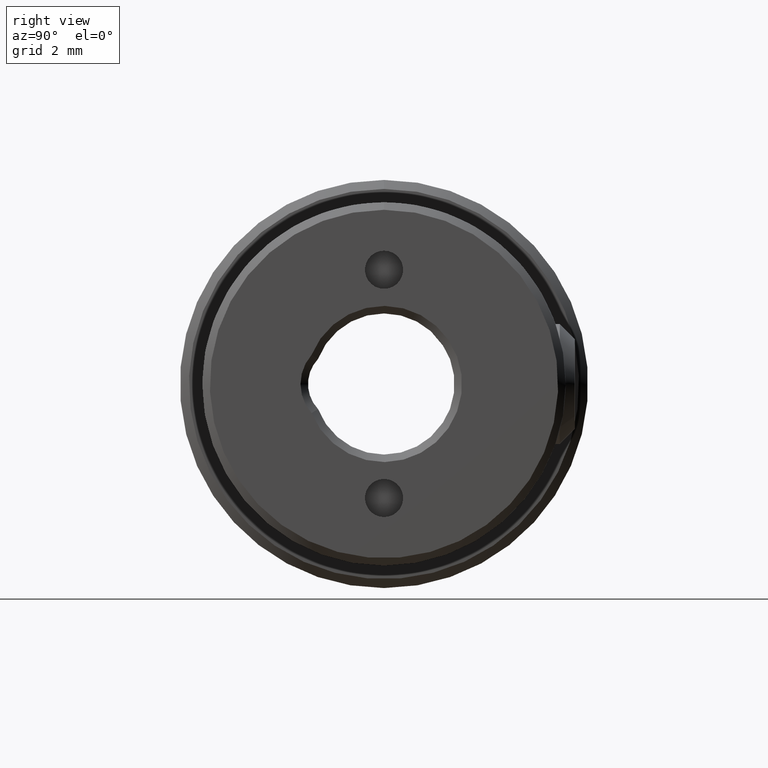
[diagram: clean part render]
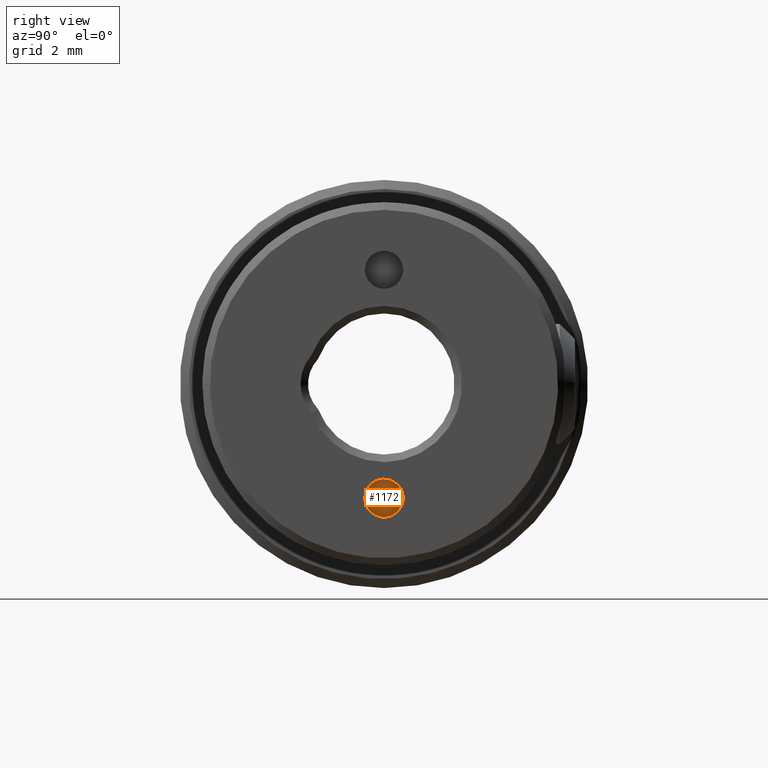
[diagram: same view with one face highlighted and labeled with its STEP entity id]
A machine part, right view. The second image highlights one B-rep face of the part: STEP entity #1172.
In plain terms, the highlighted planar face has unit normal (-1, -0, 0).
Its self-contained STEP definition (entity closure, byte-faithful):
#376 = CARTESIAN_POINT ( 'NONE',  ( 13.79999999999999893, -4.653657836759943716E-16, -3.799999999999999822 ) ) ;
#515 = EDGE_LOOP ( 'NONE', ( #3236 ) ) ;
#526 = AXIS2_PLACEMENT_3D ( 'NONE', #914, #1994, #1647 ) ;
#914 = CARTESIAN_POINT ( 'NONE',  ( 13.79999999999999893, -4.653657836759943716E-16, -3.799999999999999822 ) ) ;
#949 = DIRECTION ( 'NONE',  ( -1.000000000000000000, -0.000000000000000000, 0.000000000000000000 ) ) ;
#963 = EDGE_CURVE ( 'NONE', #2354, #2354, #2056, .T. ) ;
#1172 = ADVANCED_FACE ( 'NONE', ( #1195 ), #1270, .F. ) ;
#1195 = FACE_OUTER_BOUND ( 'NONE', #515, .T. ) ;
#1270 = PLANE ( 'NONE',  #1611 ) ;
#1611 = AXIS2_PLACEMENT_3D ( 'NONE', #376, #949, #3405 ) ;
#1647 = DIRECTION ( 'NONE',  ( 0.000000000000000000, 0.000000000000000000, -1.000000000000000000 ) ) ;
#1994 = DIRECTION ( 'NONE',  ( 1.000000000000000000, -0.000000000000000000, -0.000000000000000000 ) ) ;
#2056 = CIRCLE ( 'NONE', #526, 0.6349999999999996758 ) ;
#2354 = VERTEX_POINT ( 'NONE', #2534 ) ;
#2534 = CARTESIAN_POINT ( 'NONE',  ( 13.79999999999999893, -4.653657836759943716E-16, -4.434999999999999609 ) ) ;
#3236 = ORIENTED_EDGE ( 'NONE', *, *, #963, .T. ) ;
#3405 = DIRECTION ( 'NONE',  ( 0.000000000000000000, 0.000000000000000000, 1.000000000000000000 ) ) ;